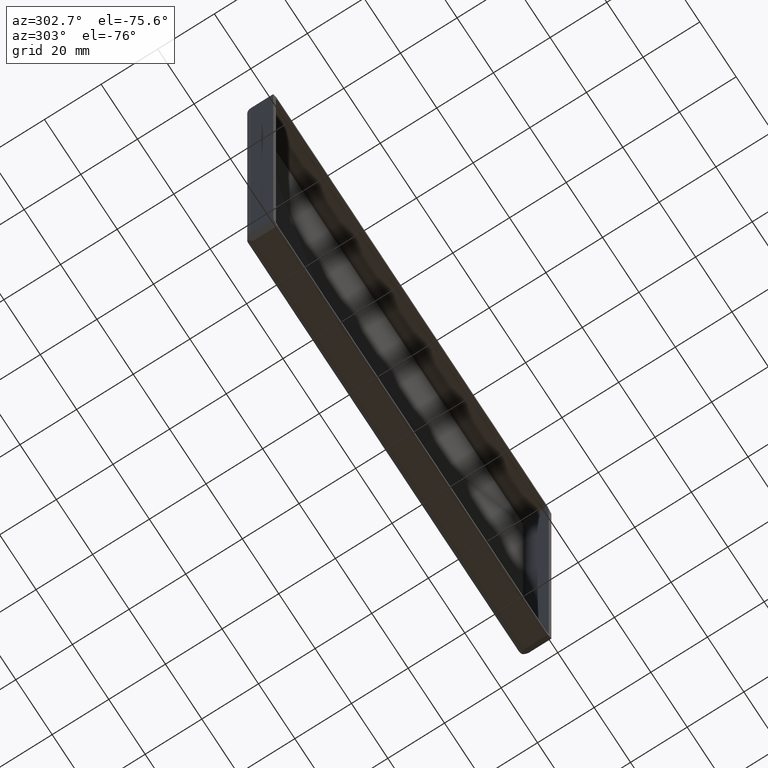
[diagram: clean part render]
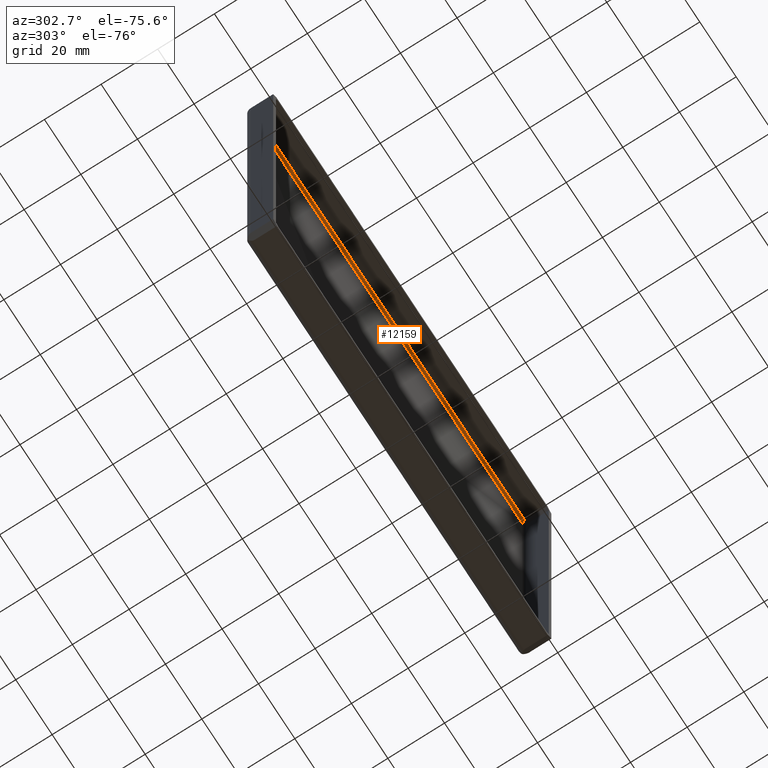
[diagram: same view with one face highlighted and labeled with its STEP entity id]
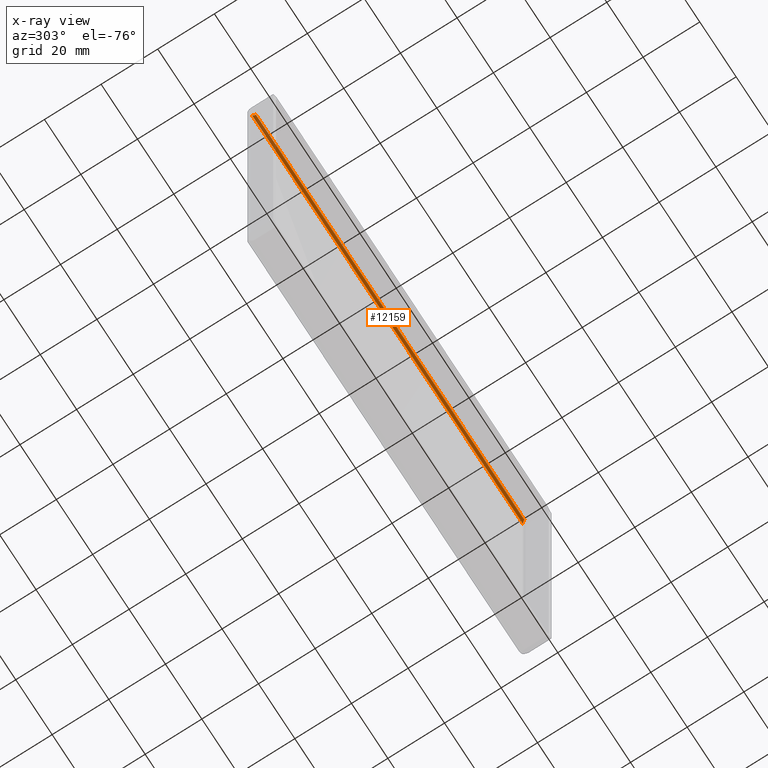
[diagram: x-ray of the same camera — body ghosted, the highlighted face saturated]
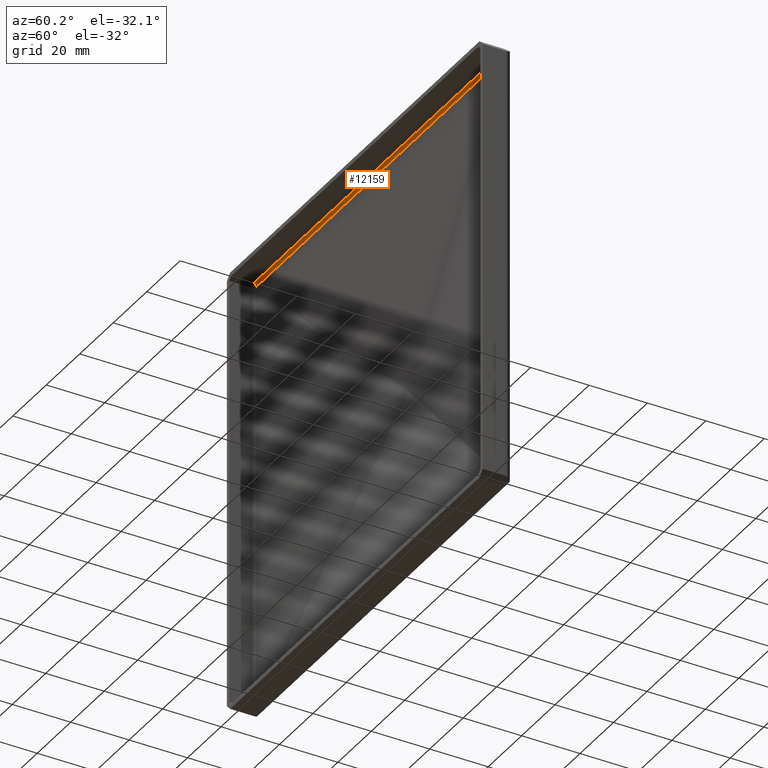
[diagram: same view with one face highlighted and labeled with its STEP entity id]
A machine part, auxiliary view. The second image highlights one B-rep face of the part: STEP entity #12159.
The next image is the same camera in x-ray: the body ghosted, the highlighted face saturated — about 7% of this face is hidden behind the body in this view.
A second angle (auxiliary view) of the same face is appended — the face is thin or edge-on in the first view.
In plain terms, the highlighted cylindrical surface (edge-blend (fillet) strip) has radius 1 mm, axis along (1, -0, -0).
Its self-contained STEP definition (entity closure, byte-faithful):
#182 = ORIENTED_EDGE ( 'NONE', *, *, #9618, .T. ) ;
#865 = CARTESIAN_POINT ( 'NONE',  ( 73.87867965644046819, 7.805552754732534737, 74.99999999999995737 ) ) ;
#917 = VECTOR ( 'NONE', #11290, 1000.000000000000000 ) ;
#1069 = CARTESIAN_POINT ( 'NONE',  ( 74.12962708345358465, 8.797115571318222749, 74.12962708345355622 ) ) ;
#1301 = ORIENTED_EDGE ( 'NONE', *, *, #3485, .F. ) ;
#1677 = EDGE_LOOP ( 'NONE', ( #182, #11446, #11638, #12602, #1935, #1301 ) ) ;
#1683 = CARTESIAN_POINT ( 'NONE',  ( -74.43933982822015594, 8.703873697012900479, 74.43933982822019857 ) ) ;
#1794 = CARTESIAN_POINT ( 'NONE',  ( -76.50000000000005684, 7.805552754732534737, 75.00000000000002842 ) ) ;
#1853 =( BOUNDED_CURVE ( )  B_SPLINE_CURVE ( 3, ( #11988, #10076, #2876, #865 ),
 .UNSPECIFIED., .F., .T. ) 
 B_SPLINE_CURVE_WITH_KNOTS ( ( 4, 4 ),
 ( 2.025659972776608253, 3.141592653589793116 ),
 .UNSPECIFIED. ) 
 CURVE ( )  GEOMETRIC_REPRESENTATION_ITEM ( )  RATIONAL_B_SPLINE_CURVE ( ( 1.000000000000000000, 0.8988890734333275789, 0.8988890734333275789, 1.000000000000000000 ) ) 
 REPRESENTATION_ITEM ( '' )  );
#1855 = VERTEX_POINT ( 'NONE', #5859 ) ;
#1896 = EDGE_CURVE ( 'NONE', #7529, #8387, #3364, .T. ) ;
#1935 = ORIENTED_EDGE ( 'NONE', *, *, #3474, .T. ) ;
#2507 = CARTESIAN_POINT ( 'NONE',  ( 74.12962708345358465, 8.797115571318222749, 74.12962708345355622 ) ) ;
#2639 = CARTESIAN_POINT ( 'NONE',  ( 74.23747858245292264, 8.783016136539567142, 74.23747858245289422 ) ) ;
#2817 = VERTEX_POINT ( 'NONE', #9239 ) ;
#2876 = CARTESIAN_POINT ( 'NONE',  ( 73.87867965644045398, 8.198231590449713835, 74.99999999999998579 ) ) ;
#3364 =( BOUNDED_CURVE ( )  B_SPLINE_CURVE ( 3, ( #9755, #9835, #8824, #11804 ),
 .UNSPECIFIED., .F., .F. ) 
 B_SPLINE_CURVE_WITH_KNOTS ( ( 4, 4 ),
 ( 4.842381861148968625, 5.167252626366319213 ),
 .UNSPECIFIED. ) 
 CURVE ( )  GEOMETRIC_REPRESENTATION_ITEM ( )  RATIONAL_B_SPLINE_CURVE ( ( 1.000000000000000000, 0.9912242368698769290, 0.9912242368698769290, 1.000000000000000000 ) ) 
 REPRESENTATION_ITEM ( '' )  );
#3445 = CARTESIAN_POINT ( 'NONE',  ( -76.50000000000007105, 8.797115571318226301, 74.12962708345359886 ) ) ;
#3474 = EDGE_CURVE ( 'NONE', #2817, #5923, #1853, .T. ) ;
#3485 = EDGE_CURVE ( 'NONE', #1855, #5923, #3712, .T. ) ;
#3514 = CARTESIAN_POINT ( 'NONE',  ( -74.43933982822015594, 8.703873697012900479, 74.43933982822019857 ) ) ;
#3712 = LINE ( 'NONE', #1794, #6673 ) ;
#3844 = DIRECTION ( 'NONE',  ( 1.000000000000000000, -0.000000000000000000, -4.440892098500625669E-16 ) ) ;
#4728 = AXIS2_PLACEMENT_3D ( 'NONE', #9639, #3844, #11594 ) ;
#5107 = LINE ( 'NONE', #3445, #917 ) ;
#5336 = VERTEX_POINT ( 'NONE', #1069 ) ;
#5528 = CARTESIAN_POINT ( 'NONE',  ( -73.87867965644032608, 8.198231590449738704, 75.00000000000002842 ) ) ;
#5859 = CARTESIAN_POINT ( 'NONE',  ( -73.87867965644032608, 7.805552754732534737, 75.00000000000002842 ) ) ;
#5923 = VERTEX_POINT ( 'NONE', #6629 ) ;
#6558 = CARTESIAN_POINT ( 'NONE',  ( 74.43933982822022699, 8.703873697012870281, 74.43933982822018436 ) ) ;
#6629 = CARTESIAN_POINT ( 'NONE',  ( 73.87867965644046819, 7.805552754732534737, 74.99999999999995737 ) ) ;
#6673 = VECTOR ( 'NONE', #8816, 1000.000000000000000 ) ;
#7529 = VERTEX_POINT ( 'NONE', #11077 ) ;
#8053 = FACE_OUTER_BOUND ( 'NONE', #1677, .T. ) ;
#8387 = VERTEX_POINT ( 'NONE', #1683 ) ;
#8773 =( BOUNDED_CURVE ( )  B_SPLINE_CURVE ( 3, ( #6558, #12377, #2639, #2507 ),
 .UNSPECIFIED., .F., .F. ) 
 B_SPLINE_CURVE_WITH_KNOTS ( ( 4, 4 ),
 ( 1.115932680813191302, 1.440803446030577195 ),
 .UNSPECIFIED. ) 
 CURVE ( )  GEOMETRIC_REPRESENTATION_ITEM ( )  RATIONAL_B_SPLINE_CURVE ( ( 1.000000000000000000, 0.9912242368698749306, 0.9912242368698749306, 1.000000000000000000 ) ) 
 REPRESENTATION_ITEM ( '' )  );
#8816 = DIRECTION ( 'NONE',  ( 1.000000000000000000, -0.000000000000000000, -4.440892098500625669E-16 ) ) ;
#8824 = CARTESIAN_POINT ( 'NONE',  ( -74.34163017373650462, 8.751660340734389365, 74.34163017373650462 ) ) ;
#9239 = CARTESIAN_POINT ( 'NONE',  ( 74.43933982822022699, 8.703873697012870281, 74.43933982822018436 ) ) ;
#9397 = CARTESIAN_POINT ( 'NONE',  ( -74.08658820650512666, 8.531354244783202034, 74.79209144993519942 ) ) ;
#9524 = CARTESIAN_POINT ( 'NONE',  ( -73.87867965644032608, 7.805552754732534737, 75.00000000000002842 ) ) ;
#9618 = EDGE_CURVE ( 'NONE', #1855, #8387, #10258, .T. ) ;
#9639 = CARTESIAN_POINT ( 'NONE',  ( -76.50000000000005684, 7.805552754732534737, 74.00000000000001421 ) ) ;
#9755 = CARTESIAN_POINT ( 'NONE',  ( -74.12962708345349938, 8.797115571318219196, 74.12962708345364149 ) ) ;
#9835 = CARTESIAN_POINT ( 'NONE',  ( -74.23747858245289422, 8.783016136539572472, 74.23747858245289422 ) ) ;
#10061 = EDGE_CURVE ( 'NONE', #2817, #5336, #8773, .T. ) ;
#10076 = CARTESIAN_POINT ( 'NONE',  ( 74.08658820650522614, 8.531354244783162954, 74.79209144993517100 ) ) ;
#10258 =( BOUNDED_CURVE ( )  B_SPLINE_CURVE ( 3, ( #9524, #5528, #9397, #3514 ),
 .UNSPECIFIED., .F., .T. ) 
 B_SPLINE_CURVE_WITH_KNOTS ( ( 4, 4 ),
 ( 0.000000000000000000, 1.115932680813247035 ),
 .UNSPECIFIED. ) 
 CURVE ( )  GEOMETRIC_REPRESENTATION_ITEM ( )  RATIONAL_B_SPLINE_CURVE ( ( 1.000000000000000000, 0.8988890734333165877, 0.8988890734333165877, 1.000000000000000000 ) ) 
 REPRESENTATION_ITEM ( '' )  );
#11077 = CARTESIAN_POINT ( 'NONE',  ( -74.12962708345349938, 8.797115571318219196, 74.12962708345364149 ) ) ;
#11290 = DIRECTION ( 'NONE',  ( 1.000000000000000000, -5.708029425788732852E-17, -7.462111268754138080E-18 ) ) ;
#11380 = CYLINDRICAL_SURFACE ( 'NONE', #4728, 1.000000000000014655 ) ;
#11446 = ORIENTED_EDGE ( 'NONE', *, *, #1896, .F. ) ;
#11594 = DIRECTION ( 'NONE',  ( 0.000000000000000000, 0.000000000000000000, -1.000000000000000000 ) ) ;
#11638 = ORIENTED_EDGE ( 'NONE', *, *, #12370, .T. ) ;
#11804 = CARTESIAN_POINT ( 'NONE',  ( -74.43933982822015594, 8.703873697012900479, 74.43933982822019857 ) ) ;
#11988 = CARTESIAN_POINT ( 'NONE',  ( 74.43933982822022699, 8.703873697012870281, 74.43933982822018436 ) ) ;
#12159 = ADVANCED_FACE ( 'NONE', ( #8053 ), #11380, .F. ) ;
#12370 = EDGE_CURVE ( 'NONE', #7529, #5336, #5107, .T. ) ;
#12377 = CARTESIAN_POINT ( 'NONE',  ( 74.34163017373654725, 8.751660340734376931, 74.34163017373651883 ) ) ;
#12602 = ORIENTED_EDGE ( 'NONE', *, *, #10061, .F. ) ;